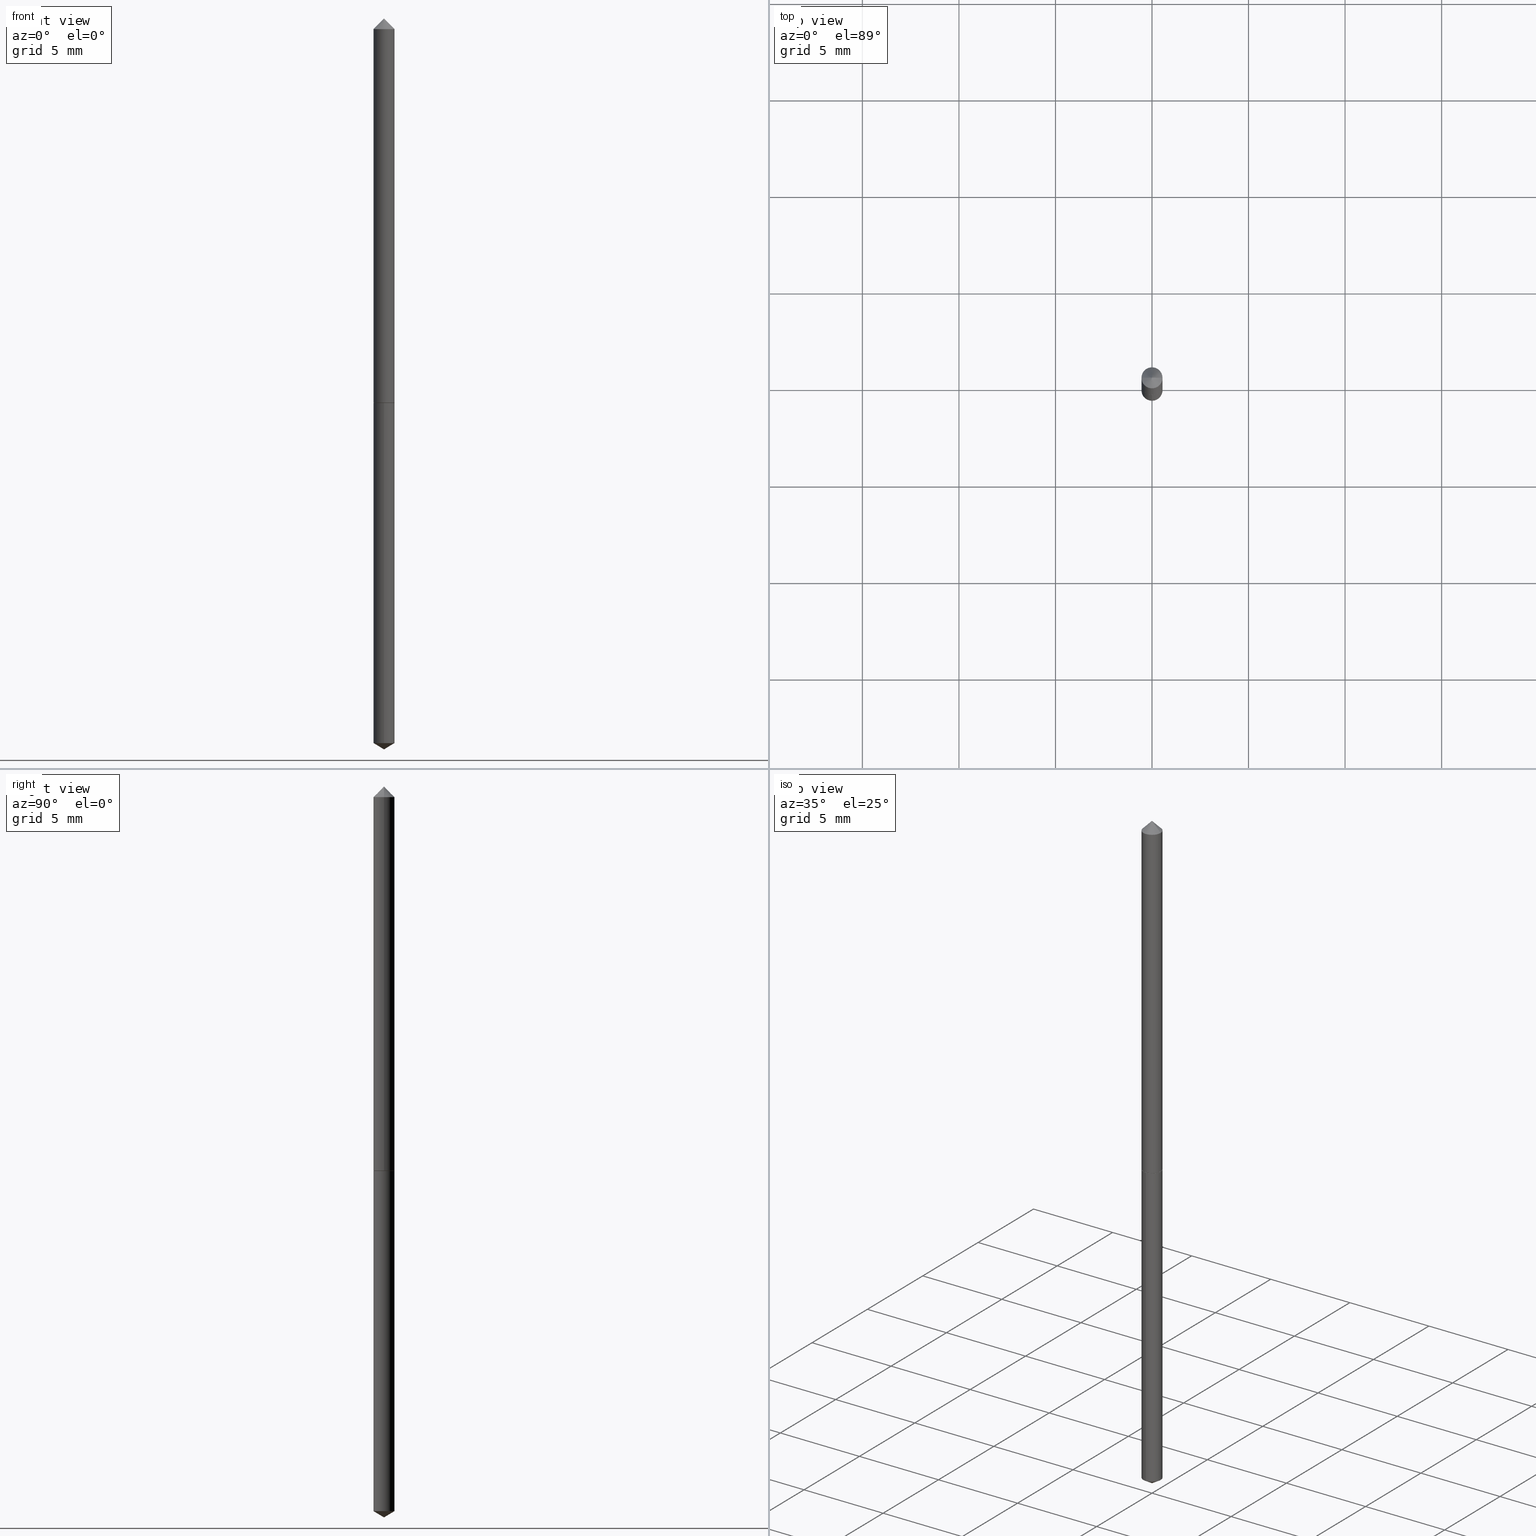
[diagram: canonical four-view strip — front | top / right | iso, engineering-drawing reading convention]
A machine part, canonical four-view strip (front | top / right | iso — engineering-drawing reading convention). The complete STEP part file that produces these views, byte-faithful:
ISO-10303-21;
HEADER;
FILE_DESCRIPTION (( 'STEP AP203' ),
    '1' );
FILE_NAME ('57101.STEP',
    '2024-04-22T22:09:42',
    ( '' ),
    ( '' ),
    'SwSTEP 2.0',
    'SolidWorks 2023',
    '' );
FILE_SCHEMA (( 'CONFIG_CONTROL_DESIGN' ));
ENDSEC;

DATA;
#1 = CALENDAR_DATE ( 2024, 22, 4 ) ;
#2 = DIRECTION ( 'NONE',  ( -2.438088387897960049E-29, 3.491481338843145188E-15, 1.000000000000000000 ) ) ;
#3 = EDGE_CURVE ( 'NONE', #119, #11, #162, .T. ) ;
#4 = CARTESIAN_POINT ( 'NONE',  ( 1.938034028901720955E-29, -2.766998961033193203E-15, -0.7925000000000000933 ) ) ;
#5 = AXIS2_PLACEMENT_3D ( 'NONE', #252, #225, #255 ) ;
#6 = AXIS2_PLACEMENT_3D ( 'NONE', #113, #283, #38 ) ;
#7 = APPROVAL_STATUS ( 'not_yet_approved' ) ;
#8 = EDGE_CURVE ( 'NONE', #119, #329, #206, .T. ) ;
#9 = CYLINDRICAL_SURFACE ( 'NONE', #288, 0.02150000000000005726 ) ;
#10 = CARTESIAN_POINT ( 'NONE',  ( 0.02150000000000010236, -2.917132658603448820E-15, -0.7925000000000000933 ) ) ;
#11 = VERTEX_POINT ( 'NONE', #129 ) ;
#12 = LOCAL_TIME ( 18, 9, 42.00000000000000000, #138 ) ;
#13 = DIRECTION ( 'NONE',  ( -2.445485687513821963E-29, 3.491457163819642669E-15, 1.000000000000000000 ) ) ;
#14 = APPROVAL ( #7, 'UNSPECIFIED' ) ;
#15 = VECTOR ( 'NONE', #358, 39.37007874015748143 ) ;
#16 = AXIS2_PLACEMENT_3D ( 'NONE', #94, #306, #64 ) ;
#17 = ORIENTED_EDGE ( 'NONE', *, *, #72, .T. ) ;
#18 = CARTESIAN_POINT ( 'NONE',  ( 3.668201757483438077E-29, -5.237224087316739708E-15, -1.500000000000000222 ) ) ;
#19 = ORIENTED_EDGE ( 'NONE', *, *, #266, .F. ) ;
#20 = ORIENTED_EDGE ( 'NONE', *, *, #69, .T. ) ;
#21 = EDGE_CURVE ( 'NONE', #11, #326, #102, .T. ) ;
#22 = DATE_AND_TIME ( #156, #300 ) ;
#23 = APPLICATION_CONTEXT ( 'configuration controlled 3d designs of mechanical parts and assemblies' ) ;
#24 = CIRCLE ( 'NONE', #46, 0.02100000000000006375 ) ;
#25 = CC_DESIGN_APPROVAL ( #50, ( #177 ) ) ;
#26 = LINE ( 'NONE', #242, #15 ) ;
#27 = CC_DESIGN_PERSON_AND_ORGANIZATION_ASSIGNMENT ( #342, #115, ( #140 ) ) ;
#28 = DIRECTION ( 'NONE',  ( 1.000000000000000000, 0.000000000000000000, 0.000000000000000000 ) ) ;
#29 = CYLINDRICAL_SURFACE ( 'NONE', #361, 0.02150000000000000175 ) ;
#30 = APPLICATION_PROTOCOL_DEFINITION ( 'international standard', 'config_control_design', 1994, #73 ) ;
#31 = CARTESIAN_POINT ( 'NONE',  ( -0.02150000000000005726, 1.527666881884219468E-16, -1.057571044404807502E-30 ) ) ;
#32 = PERSON_AND_ORGANIZATION ( #63, #325 ) ;
#33 = AXIS2_PLACEMENT_3D ( 'NONE', #76, #131, #352 ) ;
#34 = ORIENTED_EDGE ( 'NONE', *, *, #338, .T. ) ;
#35 = FACE_OUTER_BOUND ( 'NONE', #51, .T. ) ;
#36 = APPROVAL_STATUS ( 'not_yet_approved' ) ;
#37 = CARTESIAN_POINT ( 'NONE',  ( -9.261074893097023912E-28, 1.322217385409431461E-13, 37.87007874015748143 ) ) ;
#38 = DIRECTION ( 'NONE',  ( -6.982962677686265922E-15, -1.000000000000000000, 0.000000000000000000 ) ) ;
#39 = AXIS2_PLACEMENT_3D ( 'NONE', #48, #13, #290 ) ;
#40 = CC_DESIGN_PERSON_AND_ORGANIZATION_ASSIGNMENT ( #32, #61, ( #140 ) ) ;
#41 = VERTEX_POINT ( 'NONE', #83 ) ;
#42 = CALENDAR_DATE ( 2024, 22, 4 ) ;
#43 = FACE_OUTER_BOUND ( 'NONE', #161, .T. ) ;
#44 = DIRECTION ( 'NONE',  ( -2.445485687513821683E-29, 3.491457163819642275E-15, 1.000000000000000000 ) ) ;
#45 = ADVANCED_FACE ( 'NONE', ( #359 ), #180, .T. ) ;
#46 = AXIS2_PLACEMENT_3D ( 'NONE', #296, #155, #239 ) ;
#47 = CIRCLE ( 'NONE', #241, 0.02150000000000000175 ) ;
#48 = CARTESIAN_POINT ( 'NONE',  ( 1.939256763304813756E-29, -2.768744701702615101E-15, -0.7930000000000001492 ) ) ;
#49 = ORIENTED_EDGE ( 'NONE', *, *, #261, .T. ) ;
#50 = APPROVAL ( #53, 'UNSPECIFIED' ) ;
#51 = EDGE_LOOP ( 'NONE', ( #154, #66, #236, #81 ) ) ;
#52 = ADVANCED_FACE ( 'NONE', ( #57 ), #29, .T. ) ;
#53 = APPROVAL_STATUS ( 'not_yet_approved' ) ;
#54 = DIRECTION ( 'NONE',  ( -2.445468806185136597E-29, 3.491481338843145583E-15, 1.000000000000000000 ) ) ;
#55 = CARTESIAN_POINT ( 'NONE',  ( 0.02150000000000010236, -2.917132658603448820E-15, -0.7925000000000000933 ) ) ;
#56 = VECTOR ( 'NONE', #105, 39.37007874015748143 ) ;
#57 = FACE_OUTER_BOUND ( 'NONE', #172, .T. ) ;
#58 = CC_DESIGN_PERSON_AND_ORGANIZATION_ASSIGNMENT ( #336, #310, ( #229 ) ) ;
#59 = CARTESIAN_POINT ( 'NONE',  ( -1.501336975702353539E-16, -0.02150000000000277037, -0.7930000000000000382 ) ) ;
#60 = ORIENTED_EDGE ( 'NONE', *, *, #237, .F. ) ;
#61 = PERSON_AND_ORGANIZATION_ROLE ( 'creator' ) ;
#62 = ORIENTED_EDGE ( 'NONE', *, *, #293, .F. ) ;
#63 = PERSON ( 'UNSPECIFIED', 'UNSPECIFIED', 'UNSPECIFIED', ('UNSPECIFIED'), ('UNSPECIFIED'), ('UNSPECIFIED') ) ;
#64 = DIRECTION ( 'NONE',  ( 1.000000000000000000, -6.982962677686265133E-15, 0.000000000000000000 ) ) ;
#65 = DIRECTION ( 'NONE',  ( 1.000000000000000000, -6.982962677686276966E-15, 0.000000000000000000 ) ) ;
#66 = ORIENTED_EDGE ( 'NONE', *, *, #3, .T. ) ;
#67 = AXIS2_PLACEMENT_3D ( 'NONE', #189, #305, #355 ) ;
#68 = CYLINDRICAL_SURFACE ( 'NONE', #80, 0.02150000000000000175 ) ;
#69 = EDGE_CURVE ( 'NONE', #41, #208, #24, .T. ) ;
#70 = FACE_OUTER_BOUND ( 'NONE', #215, .T. ) ;
#71 = VERTEX_POINT ( 'NONE', #268 ) ;
#72 = EDGE_CURVE ( 'NONE', #230, #71, #270, .T. ) ;
#73 = APPLICATION_CONTEXT ( 'configuration controlled 3d designs of mechanical parts and assemblies' ) ;
#74 = PERSON_AND_ORGANIZATION ( #63, #325 ) ;
#75 = APPROVAL_PERSON_ORGANIZATION ( #245, #116, #190 ) ;
#76 = CARTESIAN_POINT ( 'NONE',  ( 1.938034028901720955E-29, -2.766998961033193203E-15, -0.7925000000000000933 ) ) ;
#77 = ORIENTED_EDGE ( 'NONE', *, *, #289, .F. ) ;
#78 = ORIENTED_EDGE ( 'NONE', *, *, #243, .T. ) ;
#79 = DIRECTION ( 'NONE',  ( -1.000000000000000000, 6.982962677686265922E-15, 0.000000000000000000 ) ) ;
#80 = AXIS2_PLACEMENT_3D ( 'NONE', #160, #350, #302 ) ;
#81 = ORIENTED_EDGE ( 'NONE', *, *, #243, .F. ) ;
#82 = COORDINATED_UNIVERSAL_TIME_OFFSET ( 5, 0, .BEHIND. ) ;
#83 = CARTESIAN_POINT ( 'NONE',  ( 0.02100000000000006375, -2.915386917934027317E-15, -0.7930000000000002602 ) ) ;
#84 = SECURITY_CLASSIFICATION_LEVEL ( 'unclassified' ) ;
#85 = CARTESIAN_POINT ( 'NONE',  ( -9.261074893097023912E-28, 1.322217385409431461E-13, 37.87007874015748143 ) ) ;
#86 = DIRECTION ( 'NONE',  ( 6.982962677686265922E-15, 1.000000000000000000, -3.491457163819642275E-15 ) ) ;
#87 = VECTOR ( 'NONE', #227, 39.37007874015748143 ) ;
#88 = DATE_AND_TIME ( #248, #12 ) ;
#89 = DIRECTION ( 'NONE',  ( 2.445485687513821963E-29, -3.491457163819642275E-15, -1.000000000000000000 ) ) ;
#90 = ORIENTED_EDGE ( 'NONE', *, *, #134, .F. ) ;
#91 = DATE_AND_TIME ( #42, #152 ) ;
#92 = CARTESIAN_POINT ( 'NONE',  ( 7.642090019328601786E-31, -1.091087918388490144E-16, -0.03125000000000020123 ) ) ;
#93 = EDGE_CURVE ( 'NONE', #234, #230, #26, .T. ) ;
#94 = CARTESIAN_POINT ( 'NONE',  ( 1.939256763304814036E-29, -2.768744701702615495E-15, -0.7930000000000002602 ) ) ;
#95 = EDGE_LOOP ( 'NONE', ( #348, #34, #205 ) ) ;
#96 = ORIENTED_EDGE ( 'NONE', *, *, #228, .T. ) ;
#97 = ADVANCED_FACE ( 'NONE', ( #337 ), #217, .T. ) ;
#98 =( GEOMETRIC_REPRESENTATION_CONTEXT ( 3 ) GLOBAL_UNCERTAINTY_ASSIGNED_CONTEXT ( ( #297 ) ) GLOBAL_UNIT_ASSIGNED_CONTEXT ( ( #103, #351, #330 ) ) REPRESENTATION_CONTEXT ( 'NONE', 'WORKASPACE' ) );
#99 = CARTESIAN_POINT ( 'NONE',  ( -0.02150000000000000522, 4.102490573140574679E-17, -0.03125000000000020123 ) ) ;
#100 = ORIENTED_EDGE ( 'NONE', *, *, #21, .F. ) ;
#101 = DIRECTION ( 'NONE',  ( -6.982962677686265922E-15, -1.000000000000000000, 6.353134868986658336E-15 ) ) ;
#102 = CIRCLE ( 'NONE', #139, 0.02150000000000000522 ) ;
#103 =( CONVERSION_BASED_UNIT ( 'INCH', #153 ) LENGTH_UNIT ( ) NAMED_UNIT ( #145 ) );
#104 = ORIENTED_EDGE ( 'NONE', *, *, #69, .F. ) ;
#105 = DIRECTION ( 'NONE',  ( -0.7071067811865452413, 2.468850131082233000E-15, -0.7071067811865497932 ) ) ;
#106 = EDGE_LOOP ( 'NONE', ( #104, #19 ) ) ;
#107 = EDGE_LOOP ( 'NONE', ( #184, #318 ) ) ;
#108 = LOCAL_TIME ( 18, 9, 42.00000000000000000, #170 ) ;
#109 = DIRECTION ( 'NONE',  ( 1.000000000000000000, -6.982962677686265922E-15, 0.000000000000000000 ) ) ;
#110 = DIRECTION ( 'NONE',  ( -2.445485687513821963E-29, 3.491457163819642669E-15, 1.000000000000000000 ) ) ;
#111 = CARTESIAN_POINT ( 'NONE',  ( 0.02150000000000000522, -2.566094987909369350E-16, -0.03125000000000020123 ) ) ;
#112 = APPROVAL_DATE_TIME ( #275, #14 ) ;
#113 = CARTESIAN_POINT ( 'NONE',  ( 3.636623129430600591E-29, -5.192100515598744644E-15, -1.487081496690907834 ) ) ;
#114 = CIRCLE ( 'NONE', #6, 0.02150000000000000175 ) ;
#115 = PERSON_AND_ORGANIZATION_ROLE ( 'design_supplier' ) ;
#116 = APPROVAL ( #36, 'UNSPECIFIED' ) ;
#117 = CARTESIAN_POINT ( 'NONE',  ( -0.02100000000000006375, -2.616881500018882334E-15, -0.7930000000000002602 ) ) ;
#118 = CARTESIAN_POINT ( 'NONE',  ( 0.02150000000000005726, -1.501336975702551248E-16, 1.048378006796128830E-30 ) ) ;
#119 = VERTEX_POINT ( 'NONE', #135 ) ;
#120 = CARTESIAN_POINT ( 'NONE',  ( 2.384332086030522780E-31, -3.404194305372087882E-17, -0.009750000000000058967 ) ) ;
#121 = CONICAL_SURFACE ( 'NONE', #233, 65.52281426577032164, 1.029744258676667190 ) ;
#122 = ORIENTED_EDGE ( 'NONE', *, *, #72, .F. ) ;
#123 = ADVANCED_FACE ( 'NONE', ( #169 ), #307, .T. ) ;
#124 = PRODUCT_RELATED_PRODUCT_CATEGORY ( 'detail', '', ( #354 ) ) ;
#125 = CONICAL_SURFACE ( 'NONE', #224, 0.02150000000000000522, 0.7853981633974450594 ) ;
#126 = ORIENTED_EDGE ( 'NONE', *, *, #216, .F. ) ;
#127 = DIRECTION ( 'NONE',  ( 2.445468806185136597E-29, -3.491481338843145583E-15, -1.000000000000000000 ) ) ;
#128 = ORIENTED_EDGE ( 'NONE', *, *, #293, .T. ) ;
#129 = CARTESIAN_POINT ( 'NONE',  ( -0.02150000000000000522, -1.285287188247597701E-15, -0.03125000000000020123 ) ) ;
#130 = CARTESIAN_POINT ( 'NONE',  ( -1.501336975702183934E-16, -0.02150000000000519898, -1.487081496690907834 ) ) ;
#131 = DIRECTION ( 'NONE',  ( -2.445468806185136597E-29, 3.491481338843145583E-15, 1.000000000000000000 ) ) ;
#132 = ADVANCED_BREP_SHAPE_REPRESENTATION ( '57101', ( #251, #253, #186 ), #98 ) ;
#133 = APPLICATION_PROTOCOL_DEFINITION ( 'international standard', 'config_control_design', 1994, #23 ) ;
#134 = EDGE_CURVE ( 'NONE', #208, #119, #312, .T. ) ;
#135 = CARTESIAN_POINT ( 'NONE',  ( -0.02150000000000010236, -2.614232272844770738E-15, -0.7925000000000000933 ) ) ;
#136 = APPROVAL_ROLE ( '' ) ;
#137 = CARTESIAN_POINT ( 'NONE',  ( 1.938034028901720955E-29, -2.766998961033193203E-15, -0.7925000000000000933 ) ) ;
#138 = COORDINATED_UNIVERSAL_TIME_OFFSET ( 5, 0, .BEHIND. ) ;
#139 = AXIS2_PLACEMENT_3D ( 'NONE', #360, #244, #109 ) ;
#140 = PRODUCT_DEFINITION_FORMATION_WITH_SPECIFIED_SOURCE ( 'ANY', '', #354, .NOT_KNOWN. ) ;
#141 = CARTESIAN_POINT ( 'NONE',  ( -1.662547835892702728E-29, -7.926733889740119453E-15, -0.7930000000000002602 ) ) ;
#142 = ADVANCED_FACE ( 'NONE', ( #280 ), #193, .F. ) ;
#143 = PLANE ( 'NONE',  #263 ) ;
#144 = DIRECTION ( 'NONE',  ( -2.445485687513821963E-29, 3.491457163819642669E-15, 1.000000000000000000 ) ) ;
#145 = DIMENSIONAL_EXPONENTS ( 1.000000000000000000, 0.000000000000000000, 0.000000000000000000, 0.000000000000000000, 0.000000000000000000, 0.000000000000000000, 0.000000000000000000 ) ;
#146 = DIRECTION ( 'NONE',  ( -2.445468806185136597E-29, 3.491481338843145583E-15, 1.000000000000000000 ) ) ;
#147 = APPROVAL_PERSON_ORGANIZATION ( #333, #50, #136 ) ;
#148 = DIRECTION ( 'NONE',  ( -2.445468806185136597E-29, 3.491481338843145583E-15, 1.000000000000000000 ) ) ;
#149 = CIRCLE ( 'NONE', #207, 0.02150000000000000175 ) ;
#150 = EDGE_CURVE ( 'NONE', #326, #11, #240, .T. ) ;
#151 = AXIS2_PLACEMENT_3D ( 'NONE', #37, #173, #317 ) ;
#152 = LOCAL_TIME ( 18, 9, 42.00000000000000000, #82 ) ;
#153 = LENGTH_MEASURE_WITH_UNIT ( LENGTH_MEASURE( 0.02539999999999999897 ), #235 );
#154 = ORIENTED_EDGE ( 'NONE', *, *, #216, .T. ) ;
#155 = DIRECTION ( 'NONE',  ( -2.445468806185136597E-29, 3.491481338843145583E-15, 1.000000000000000000 ) ) ;
#156 = CALENDAR_DATE ( 2024, 22, 4 ) ;
#157 = CARTESIAN_POINT ( 'NONE',  ( 1.939256763304813756E-29, -2.768744701702615101E-15, -0.7930000000000001492 ) ) ;
#158 = ADVANCED_FACE ( 'NONE', ( #198 ), #143, .F. ) ;
#159 = AXIS2_PLACEMENT_3D ( 'NONE', #4, #146, #65 ) ;
#160 = CARTESIAN_POINT ( 'NONE',  ( 1.939256763304813756E-29, -2.768744701702615101E-15, -0.7930000000000001492 ) ) ;
#161 = EDGE_LOOP ( 'NONE', ( #277, #343, #78, #100 ) ) ;
#162 = LINE ( 'NONE', #31, #165 ) ;
#163 = DATE_TIME_ROLE ( 'creation_date' ) ;
#164 = EDGE_LOOP ( 'NONE', ( #298, #213, #199 ) ) ;
#165 = VECTOR ( 'NONE', #274, 39.37007874015748143 ) ;
#166 = DIRECTION ( 'NONE',  ( -6.982962677686265922E-15, -1.000000000000000000, 6.353134868986658336E-15 ) ) ;
#167 = DIRECTION ( 'NONE',  ( 1.000000000000000000, -6.982962677686265922E-15, 0.000000000000000000 ) ) ;
#168 = CC_DESIGN_PERSON_AND_ORGANIZATION_ASSIGNMENT ( #74, #295, ( #354 ) ) ;
#169 = FACE_OUTER_BOUND ( 'NONE', #287, .T. ) ;
#170 = COORDINATED_UNIVERSAL_TIME_OFFSET ( 5, 0, .BEHIND. ) ;
#171 = DIRECTION ( 'NONE',  ( -2.445468806185136597E-29, 3.491481338843145583E-15, 1.000000000000000000 ) ) ;
#172 = EDGE_LOOP ( 'NONE', ( #183, #17, #347, #62 ) ) ;
#173 = DIRECTION ( 'NONE',  ( -2.445485687513821963E-29, 3.491457163819642669E-15, 1.000000000000000000 ) ) ;
#174 = CIRCLE ( 'NONE', #159, 0.02150000000000010236 ) ;
#175 = CARTESIAN_POINT ( 'NONE',  ( -0.02150000000000010236, -2.614232272844770738E-15, -0.7925000000000000933 ) ) ;
#176 = AXIS2_PLACEMENT_3D ( 'NONE', #137, #54, #246 ) ;
#177 = PRODUCT_DEFINITION ( 'UNKNOWN', '', #140, #311 ) ;
#178 = ADVANCED_FACE ( 'NONE', ( #35 ), #286, .T. ) ;
#179 = PRODUCT_DEFINITION_SHAPE ( 'NONE', 'NONE',  #177 ) ;
#180 = CONICAL_SURFACE ( 'NONE', #33, 0.02150000000000010236, 0.7853981633973159404 ) ;
#181 = DIRECTION ( 'NONE',  ( -2.445485687513821963E-29, 3.491457163819642669E-15, 1.000000000000000000 ) ) ;
#182 = CARTESIAN_POINT ( 'NONE',  ( 0.000000000000000000, 0.000000000000000000, 0.000000000000000000 ) ) ;
#183 = ORIENTED_EDGE ( 'NONE', *, *, #363, .T. ) ;
#184 = ORIENTED_EDGE ( 'NONE', *, *, #301, .T. ) ;
#185 = AXIS2_PLACEMENT_3D ( 'NONE', #92, #345, #167 ) ;
#186 = AXIS2_PLACEMENT_3D ( 'NONE', #182, #238, #28 ) ;
#187 = EDGE_LOOP ( 'NONE', ( #197, #49, #209 ) ) ;
#188 = APPROVAL_DATE_TIME ( #91, #116 ) ;
#189 = CARTESIAN_POINT ( 'NONE',  ( 7.642090019328601786E-31, -1.091087918388490144E-16, -0.03125000000000020123 ) ) ;
#190 = APPROVAL_ROLE ( '' ) ;
#191 = DIRECTION ( 'NONE',  ( 0.7071067811865452413, -7.319954787623248157E-15, -0.7071067811865497932 ) ) ;
#192 = VECTOR ( 'NONE', #282, 39.37007874015748854 ) ;
#193 = PLANE ( 'NONE',  #278 ) ;
#194 = PERSON_AND_ORGANIZATION ( #63, #325 ) ;
#195 = DIRECTION ( 'NONE',  ( -6.982962677686265922E-15, -1.000000000000000000, 3.468864327941494029E-15 ) ) ;
#196 = ADVANCED_FACE ( 'NONE', ( #314 ), #315, .T. ) ;
#197 = ORIENTED_EDGE ( 'NONE', *, *, #338, .F. ) ;
#198 = FACE_OUTER_BOUND ( 'NONE', #107, .T. ) ;
#199 = ORIENTED_EDGE ( 'NONE', *, *, #363, .F. ) ;
#200 = DIRECTION ( 'NONE',  ( 1.000000000000000000, -6.982962677686276966E-15, 0.000000000000000000 ) ) ;
#201 = APPROVAL_PERSON_ORGANIZATION ( #194, #14, #254 ) ;
#202 = ORIENTED_EDGE ( 'NONE', *, *, #93, .F. ) ;
#203 = ADVANCED_FACE ( 'NONE', ( #70 ), #121, .T. ) ;
#204 = CARTESIAN_POINT ( 'NONE',  ( 1.939256763304813756E-29, -2.768744701702615101E-15, -0.7930000000000001492 ) ) ;
#205 = ORIENTED_EDGE ( 'NONE', *, *, #21, .T. ) ;
#206 = CIRCLE ( 'NONE', #176, 0.02150000000000010236 ) ;
#207 = AXIS2_PLACEMENT_3D ( 'NONE', #204, #110, #166 ) ;
#208 = VERTEX_POINT ( 'NONE', #117 ) ;
#209 = ORIENTED_EDGE ( 'NONE', *, *, #150, .T. ) ;
#210 = CARTESIAN_POINT ( 'NONE',  ( 0.02150000000000000522, -2.592424894091037817E-16, -0.03125000000000020123 ) ) ;
#211 = ORIENTED_EDGE ( 'NONE', *, *, #134, .T. ) ;
#212 = LINE ( 'NONE', #18, #335 ) ;
#213 = ORIENTED_EDGE ( 'NONE', *, *, #93, .T. ) ;
#214 = MECHANICAL_CONTEXT ( 'NONE', #23, 'mechanical' ) ;
#215 = EDGE_LOOP ( 'NONE', ( #202, #284, #323 ) ) ;
#216 = EDGE_CURVE ( 'NONE', #329, #119, #174, .T. ) ;
#217 = CONICAL_SURFACE ( 'NONE', #67, 0.02150000000000000522, 0.7853981633974450594 ) ;
#218 = VECTOR ( 'NONE', #339, 39.37007874015748854 ) ;
#219 = CALENDAR_DATE ( 2024, 22, 4 ) ;
#220 = DIRECTION ( 'NONE',  ( -2.445485687513821683E-29, 3.491457163819642275E-15, 1.000000000000000000 ) ) ;
#221 = LINE ( 'NONE', #10, #218 ) ;
#222 = APPROVAL_DATE_TIME ( #22, #50 ) ;
#223 = CARTESIAN_POINT ( 'NONE',  ( 1.938034028901720955E-29, -2.766998961033193203E-15, -0.7925000000000000933 ) ) ;
#224 = AXIS2_PLACEMENT_3D ( 'NONE', #292, #127, #79 ) ;
#225 = DIRECTION ( 'NONE',  ( -2.445468806185136597E-29, 3.491481338843145583E-15, 1.000000000000000000 ) ) ;
#226 = CARTESIAN_POINT ( 'NONE',  ( 0.000000000000000000, 0.000000000000000000, 0.000000000000000000 ) ) ;
#227 = DIRECTION ( 'NONE',  ( -2.445468806185136877E-29, 3.491481338843145188E-15, 1.000000000000000000 ) ) ;
#228 = EDGE_CURVE ( 'NONE', #230, #331, #114, .T. ) ;
#229 = SECURITY_CLASSIFICATION ( '', '', #84 ) ;
#230 = VERTEX_POINT ( 'NONE', #257 ) ;
#231 = CLOSED_SHELL ( 'NONE', ( #332, #178, #45, #142, #123, #232, #97 ) ) ;
#232 = ADVANCED_FACE ( 'NONE', ( #43 ), #9, .T. ) ;
#233 = AXIS2_PLACEMENT_3D ( 'NONE', #85, #144, #195 ) ;
#234 = VERTEX_POINT ( 'NONE', #258 ) ;
#235 =( LENGTH_UNIT ( ) NAMED_UNIT ( * ) SI_UNIT ( $, .METRE. ) );
#236 = ORIENTED_EDGE ( 'NONE', *, *, #150, .F. ) ;
#237 = EDGE_CURVE ( 'NONE', #41, #329, #221, .T. ) ;
#238 = DIRECTION ( 'NONE',  ( 0.000000000000000000, 0.000000000000000000, 1.000000000000000000 ) ) ;
#239 = DIRECTION ( 'NONE',  ( 1.000000000000000000, -6.982962677686265133E-15, 0.000000000000000000 ) ) ;
#240 = CIRCLE ( 'NONE', #185, 0.02150000000000000522 ) ;
#241 = AXIS2_PLACEMENT_3D ( 'NONE', #267, #265, #324 ) ;
#242 = CARTESIAN_POINT ( 'NONE',  ( 3.668228766045243993E-29, -5.237185745729463806E-15, -1.500000000000000222 ) ) ;
#243 = EDGE_CURVE ( 'NONE', #329, #326, #364, .T. ) ;
#244 = DIRECTION ( 'NONE',  ( -2.445468806185136597E-29, 3.491481338843145583E-15, 1.000000000000000000 ) ) ;
#245 = PERSON_AND_ORGANIZATION ( #63, #325 ) ;
#246 = DIRECTION ( 'NONE',  ( 1.000000000000000000, -6.982962677686276966E-15, 0.000000000000000000 ) ) ;
#247 = CLOSED_SHELL ( 'NONE', ( #52, #196, #203, #320, #158 ) ) ;
#248 = CALENDAR_DATE ( 2024, 22, 4 ) ;
#249 = CC_DESIGN_DATE_AND_TIME_ASSIGNMENT ( #308, #163, ( #177 ) ) ;
#250 = DIRECTION ( 'NONE',  ( 1.000000000000000000, -6.982962677686265922E-15, 4.876176775795935232E-29 ) ) ;
#251 = MANIFOLD_SOLID_BREP ( 'Body-Move/Copy2[1]', #247 ) ;
#252 = CARTESIAN_POINT ( 'NONE',  ( 0.000000000000000000, 0.000000000000000000, 0.000000000000000000 ) ) ;
#253 = MANIFOLD_SOLID_BREP ( 'Body-Move/Copy2[2]', #231 ) ;
#254 = APPROVAL_ROLE ( '' ) ;
#255 = DIRECTION ( 'NONE',  ( 1.000000000000000000, -6.982962677686265922E-15, 4.876176775795935232E-29 ) ) ;
#256 = COORDINATED_UNIVERSAL_TIME_OFFSET ( 5, 0, .BEHIND. ) ;
#257 = CARTESIAN_POINT ( 'NONE',  ( 1.527666881884579139E-16, 0.02149999999999481493, -1.487081496690907834 ) ) ;
#258 = CARTESIAN_POINT ( 'NONE',  ( 3.668228531270732945E-29, -5.237185745729463806E-15, -1.500000000000000222 ) ) ;
#259 = EDGE_LOOP ( 'NONE', ( #20, #211, #126, #60 ) ) ;
#260 = LOCAL_TIME ( 18, 9, 42.00000000000000000, #256 ) ;
#261 = EDGE_CURVE ( 'NONE', #299, #326, #346, .T. ) ;
#262 = CARTESIAN_POINT ( 'NONE',  ( -1.501336975702353539E-16, -0.02150000000000277037, -0.7930000000000000382 ) ) ;
#263 = AXIS2_PLACEMENT_3D ( 'NONE', #309, #89, #86 ) ;
#264 = EDGE_LOOP ( 'NONE', ( #122, #96, #128, #77 ) ) ;
#265 = DIRECTION ( 'NONE',  ( -2.445485687513821963E-29, 3.491457163819642669E-15, 1.000000000000000000 ) ) ;
#266 = EDGE_CURVE ( 'NONE', #208, #41, #285, .T. ) ;
#267 = CARTESIAN_POINT ( 'NONE',  ( 3.636623129430600591E-29, -5.192100515598744644E-15, -1.487081496690907834 ) ) ;
#268 = CARTESIAN_POINT ( 'NONE',  ( 1.527666881884579879E-16, 0.02149999999999722966, -0.7930000000000002602 ) ) ;
#269 = DIRECTION ( 'NONE',  ( -5.985567269335988611E-15, -0.8571673007021169965, 0.5150380749100462729 ) ) ;
#270 = LINE ( 'NONE', #273, #271 ) ;
#271 = VECTOR ( 'NONE', #220, 39.37007874015748143 ) ;
#272 = VECTOR ( 'NONE', #44, 39.37007874015748143 ) ;
#273 = CARTESIAN_POINT ( 'NONE',  ( 1.527666881884409041E-16, 0.02149999999999722966, -0.7930000000000002602 ) ) ;
#274 = DIRECTION ( 'NONE',  ( -2.445468806185136877E-29, 3.491481338843145188E-15, 1.000000000000000000 ) ) ;
#275 = DATE_AND_TIME ( #219, #108 ) ;
#276 = CC_DESIGN_PERSON_AND_ORGANIZATION_ASSIGNMENT ( #304, #279, ( #177 ) ) ;
#277 = ORIENTED_EDGE ( 'NONE', *, *, #3, .F. ) ;
#278 = AXIS2_PLACEMENT_3D ( 'NONE', #141, #2, #340 ) ;
#279 = PERSON_AND_ORGANIZATION_ROLE ( 'creator' ) ;
#280 = FACE_OUTER_BOUND ( 'NONE', #106, .T. ) ;
#281 = FACE_OUTER_BOUND ( 'NONE', #264, .T. ) ;
#282 = DIRECTION ( 'NONE',  ( -0.7071067811864538699, 7.493145998870014950E-15, 0.7071067811866410535 ) ) ;
#283 = DIRECTION ( 'NONE',  ( -2.445485687513821963E-29, 3.491457163819642669E-15, 1.000000000000000000 ) ) ;
#284 = ORIENTED_EDGE ( 'NONE', *, *, #357, .T. ) ;
#285 = CIRCLE ( 'NONE', #16, 0.02100000000000006375 ) ;
#286 = CYLINDRICAL_SURFACE ( 'NONE', #5, 0.02150000000000005726 ) ;
#287 = EDGE_LOOP ( 'NONE', ( #90, #294, #303, #319 ) ) ;
#288 = AXIS2_PLACEMENT_3D ( 'NONE', #226, #148, #250 ) ;
#289 = EDGE_CURVE ( 'NONE', #71, #334, #341, .T. ) ;
#290 = DIRECTION ( 'NONE',  ( -6.982962677686265922E-15, -1.000000000000000000, 6.353134868986658336E-15 ) ) ;
#291 = LINE ( 'NONE', #262, #272 ) ;
#292 = CARTESIAN_POINT ( 'NONE',  ( 7.642090019328601786E-31, -1.091087918388490144E-16, -0.03125000000000020123 ) ) ;
#293 = EDGE_CURVE ( 'NONE', #331, #334, #291, .T. ) ;
#294 = ORIENTED_EDGE ( 'NONE', *, *, #266, .T. ) ;
#295 = PERSON_AND_ORGANIZATION_ROLE ( 'design_owner' ) ;
#296 = CARTESIAN_POINT ( 'NONE',  ( 1.939256763304814036E-29, -2.768744701702615495E-15, -0.7930000000000002602 ) ) ;
#297 = UNCERTAINTY_MEASURE_WITH_UNIT (LENGTH_MEASURE( 1.000000000000000082E-05 ), #103, 'distance_accuracy_value', 'NONE');
#298 = ORIENTED_EDGE ( 'NONE', *, *, #357, .F. ) ;
#299 = VERTEX_POINT ( 'NONE', #120 ) ;
#300 = LOCAL_TIME ( 18, 9, 42.00000000000000000, #328 ) ;
#301 = EDGE_CURVE ( 'NONE', #334, #71, #149, .T. ) ;
#302 = DIRECTION ( 'NONE',  ( -6.982962677686265922E-15, -1.000000000000000000, 6.353134868986658336E-15 ) ) ;
#303 = ORIENTED_EDGE ( 'NONE', *, *, #237, .T. ) ;
#304 = PERSON_AND_ORGANIZATION ( #63, #325 ) ;
#305 = DIRECTION ( 'NONE',  ( 2.445468806185136597E-29, -3.491481338843145583E-15, -1.000000000000000000 ) ) ;
#306 = DIRECTION ( 'NONE',  ( -2.445468806185136597E-29, 3.491481338843145583E-15, 1.000000000000000000 ) ) ;
#307 = CONICAL_SURFACE ( 'NONE', #353, 0.02150000000000010236, 0.7853981633973159404 ) ;
#308 = DATE_AND_TIME ( #1, #260 ) ;
#309 = CARTESIAN_POINT ( 'NONE',  ( 1.939256763304813756E-29, -2.768744701702615101E-15, -0.7930000000000001492 ) ) ;
#310 = PERSON_AND_ORGANIZATION_ROLE ( 'classification_officer' ) ;
#311 = DESIGN_CONTEXT ( 'detailed design', #73, 'design' ) ;
#312 = LINE ( 'NONE', #175, #192 ) ;
#313 = SHAPE_DEFINITION_REPRESENTATION ( #179, #132 ) ;
#314 = FACE_OUTER_BOUND ( 'NONE', #164, .T. ) ;
#315 = CONICAL_SURFACE ( 'NONE', #151, 65.52281426577032164, 1.029744258676667190 ) ;
#316 = CC_DESIGN_APPROVAL ( #14, ( #140 ) ) ;
#317 = DIRECTION ( 'NONE',  ( -6.982962677686265922E-15, -1.000000000000000000, 3.468864327941494029E-15 ) ) ;
#318 = ORIENTED_EDGE ( 'NONE', *, *, #289, .T. ) ;
#319 = ORIENTED_EDGE ( 'NONE', *, *, #8, .F. ) ;
#320 = ADVANCED_FACE ( 'NONE', ( #281 ), #68, .T. ) ;
#321 = VECTOR ( 'NONE', #191, 39.37007874015748143 ) ;
#322 = LINE ( 'NONE', #99, #56 ) ;
#323 = ORIENTED_EDGE ( 'NONE', *, *, #228, .F. ) ;
#324 = DIRECTION ( 'NONE',  ( -6.982962677686265922E-15, -1.000000000000000000, 0.000000000000000000 ) ) ;
#325 = ORGANIZATION ( 'UNSPECIFIED', 'UNSPECIFIED', '' ) ;
#326 = VERTEX_POINT ( 'NONE', #210 ) ;
#327 = CC_DESIGN_DATE_AND_TIME_ASSIGNMENT ( #88, #344, ( #229 ) ) ;
#328 = COORDINATED_UNIVERSAL_TIME_OFFSET ( 5, 0, .BEHIND. ) ;
#329 = VERTEX_POINT ( 'NONE', #55 ) ;
#330 =( NAMED_UNIT ( * ) SI_UNIT ( $, .STERADIAN. ) SOLID_ANGLE_UNIT ( ) );
#331 = VERTEX_POINT ( 'NONE', #130 ) ;
#332 = ADVANCED_FACE ( 'NONE', ( #356 ), #125, .T. ) ;
#333 = PERSON_AND_ORGANIZATION ( #63, #325 ) ;
#334 = VERTEX_POINT ( 'NONE', #59 ) ;
#335 = VECTOR ( 'NONE', #269, 39.37007874015748143 ) ;
#336 = PERSON_AND_ORGANIZATION ( #63, #325 ) ;
#337 = FACE_OUTER_BOUND ( 'NONE', #95, .T. ) ;
#338 = EDGE_CURVE ( 'NONE', #299, #11, #322, .T. ) ;
#339 = DIRECTION ( 'NONE',  ( 0.7071067811864538699, -2.468850131081276112E-15, 0.7071067811866410535 ) ) ;
#340 = DIRECTION ( 'NONE',  ( 1.000000000000000000, -6.982962677686265922E-15, 4.876176775795935793E-29 ) ) ;
#341 = CIRCLE ( 'NONE', #39, 0.02150000000000000175 ) ;
#342 = PERSON_AND_ORGANIZATION ( #63, #325 ) ;
#343 = ORIENTED_EDGE ( 'NONE', *, *, #8, .T. ) ;
#344 = DATE_TIME_ROLE ( 'classification_date' ) ;
#345 = DIRECTION ( 'NONE',  ( -2.445468806185136597E-29, 3.491481338843145583E-15, 1.000000000000000000 ) ) ;
#346 = LINE ( 'NONE', #111, #321 ) ;
#347 = ORIENTED_EDGE ( 'NONE', *, *, #301, .F. ) ;
#348 = ORIENTED_EDGE ( 'NONE', *, *, #261, .F. ) ;
#349 = CC_DESIGN_SECURITY_CLASSIFICATION ( #229, ( #140 ) ) ;
#350 = DIRECTION ( 'NONE',  ( -2.445485687513821963E-29, 3.491457163819642669E-15, 1.000000000000000000 ) ) ;
#351 =( NAMED_UNIT ( * ) PLANE_ANGLE_UNIT ( ) SI_UNIT ( $, .RADIAN. ) );
#352 = DIRECTION ( 'NONE',  ( 1.000000000000000000, -6.982962677686276966E-15, 0.000000000000000000 ) ) ;
#353 = AXIS2_PLACEMENT_3D ( 'NONE', #223, #171, #200 ) ;
#354 = PRODUCT ( '57101', '57101', '', ( #214 ) ) ;
#355 = DIRECTION ( 'NONE',  ( -1.000000000000000000, 6.982962677686265922E-15, 0.000000000000000000 ) ) ;
#356 = FACE_OUTER_BOUND ( 'NONE', #187, .T. ) ;
#357 = EDGE_CURVE ( 'NONE', #234, #331, #212, .T. ) ;
#358 = DIRECTION ( 'NONE',  ( 6.090539988449826556E-15, 0.8571673007021206603, 0.5150380749100402777 ) ) ;
#359 = FACE_OUTER_BOUND ( 'NONE', #259, .T. ) ;
#360 = CARTESIAN_POINT ( 'NONE',  ( 7.642090019328601786E-31, -1.091087918388490144E-16, -0.03125000000000020123 ) ) ;
#361 = AXIS2_PLACEMENT_3D ( 'NONE', #157, #181, #101 ) ;
#362 = CC_DESIGN_APPROVAL ( #116, ( #229 ) ) ;
#363 = EDGE_CURVE ( 'NONE', #331, #230, #47, .T. ) ;
#364 = LINE ( 'NONE', #118, #87 ) ;
ENDSEC;
END-ISO-10303-21;
